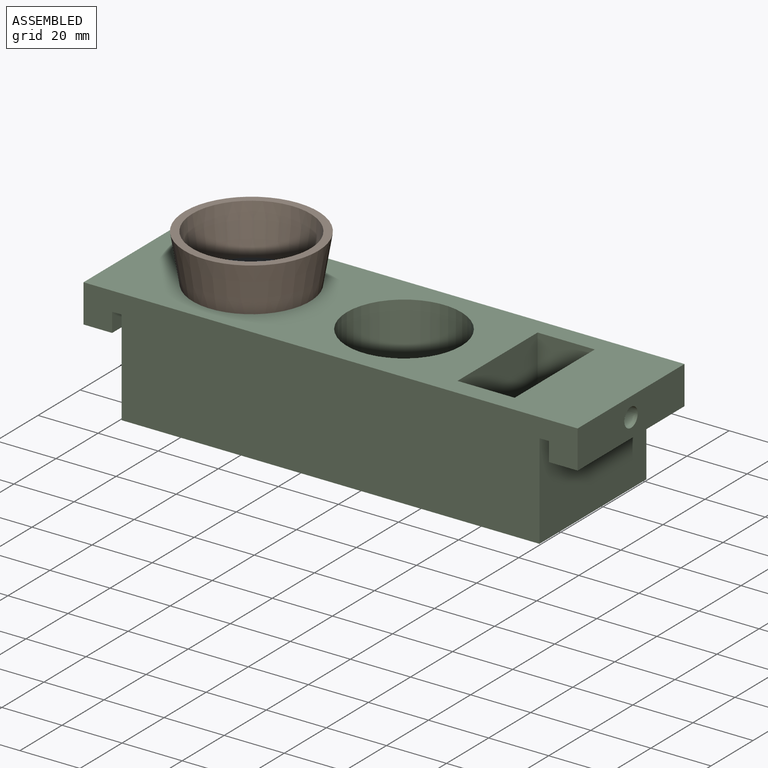
[diagram: assembled view]
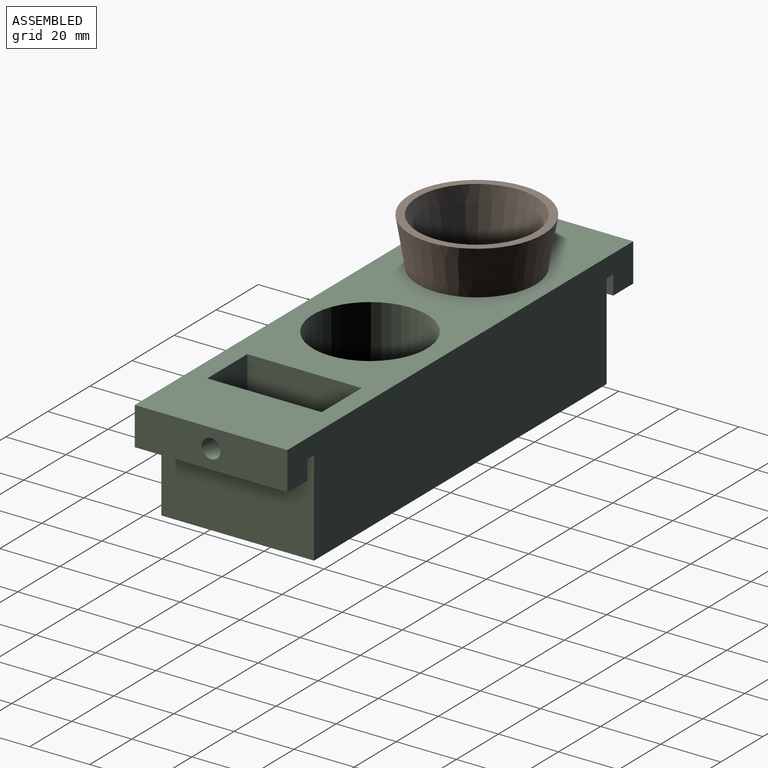
[diagram: assembled view, second angle]
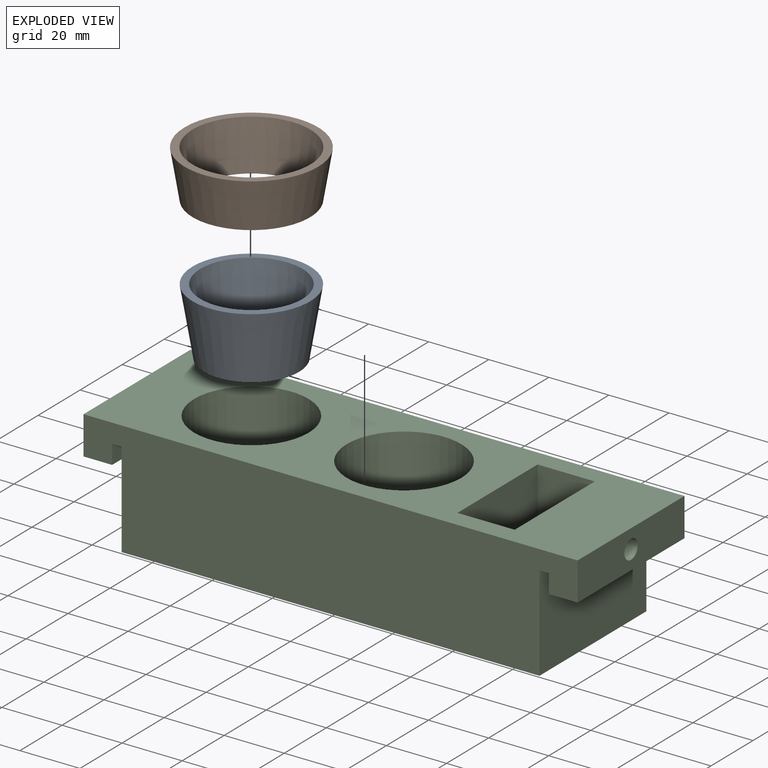
[diagram: exploded view]
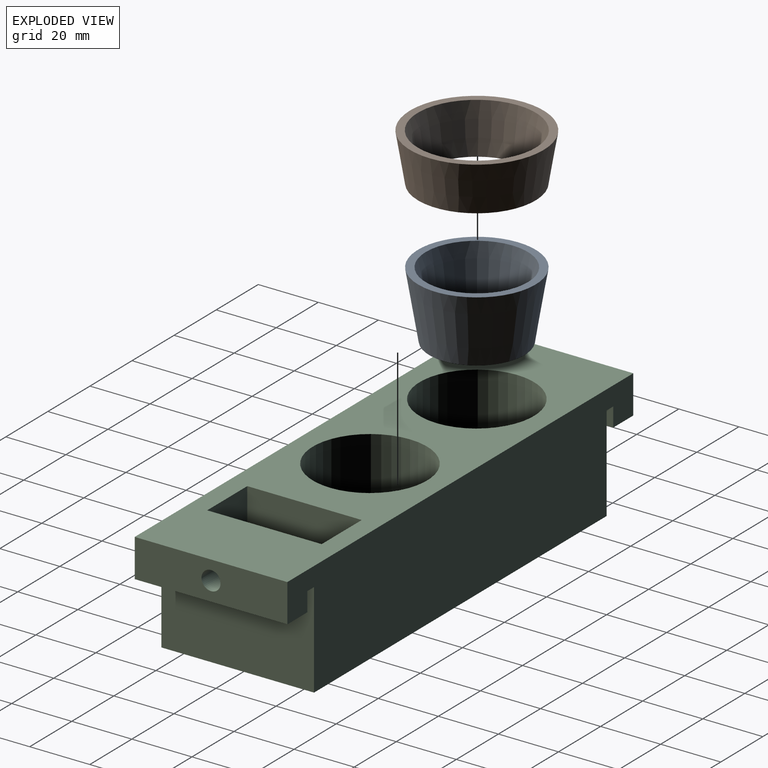
[diagram: exploded view, second angle]
ASSEMBLY  parts=3 mates=2
PART A: 5 faces, bbox 39.2x39.2x22.2 mm
  f0: plane 31.75x31.75mm, normal (0,0,1), area 791.7mm2, adj f1
  f1: cone r=22.23mm half-angle=9.5deg, axis (0,0,-1), area 2509.6mm2, adj f0,f2
  f2: plane 39.16x39.16mm, normal (0,0,-1), area 295.9mm2, adj f1,f4
  f3: plane 27.45x27.45mm, normal (0,0,-1), area 591.7mm2, adj f4
  f4: cone r=19.72mm half-angle=9.5deg, axis (0,0,-1), area 1926.5mm2, adj f2,f3
PART B: 4 faces, bbox 44.5x44.5x15.9 mm
  f0: plane 39.16x39.16mm, normal (0,0,1), area 295.9mm2, adj f1,f3
  f1: cone r=22.23mm half-angle=9.5deg, axis (0,0,-1), area 2113.6mm2, adj f0,f2
  f2: plane 44.45x44.45mm, normal (0,0,-1), area 338.8mm2, adj f1,f3
  f3: cone r=19.72mm half-angle=9.5deg, axis (0,0,-1), area 1853.3mm2, adj f0,f2
PART C: 26 faces, bbox 164.5x50.8x38.1 mm
  f0: plane 22.23x3.18mm, normal (0,0,-1), area 70.6mm2, adj f2,f4,f21,f25
  f1: plane 22.22x3.18mm, normal (0,0,-1), area 70.6mm2, adj f3,f4,f18,f24
  f2: plane 50.8x34.93mm, normal (1,0,0), area 1628.7mm2, adj f0,f4,f5,f13,f20,f25
  f3: plane 50.8x34.93mm, normal (-1,0,0), area 1628.8mm2, adj f1,f4,f5,f13,f19,f24
  f4: plane 164.47x38.1mm, normal (0,1,0), area 5580.6mm2, adj f0,f1,f2,f3,f12,f13,f16,f17
  f5: plane 164.47x38.1mm, normal (0,-1,0), area 5580.6mm2, adj f2,f3,f12,f13,f16,f17,f18,f19
  f6: plane 38.1x38.1mm, normal (1,0,0), area 1451.6mm2, adj f7,f9,f12,f13
  f7: plane 38.1x19.05mm, normal (0,-1,0), area 725.8mm2, adj f6,f8,f12,f13
  f8: plane 38.1x38.1mm, normal (-1,0,0), area 1451.6mm2, adj f7,f9,f12,f13
  f9: plane 38.1x19.05mm, normal (0,1,0), area 725.8mm2, adj f6,f8,f12,f13
  f10: cylinder r=19.05mm len=38.1mm, axis (0,0,-1), area 3800.3mm2, adj f12,f14
  f11: cylinder r=19.05mm len=38.1mm, axis (0,0,-1), area 3800.3mm2, adj f12,f15
  f12: plane 164.47x50.8mm, normal (0,0,1), area 5348.8mm2, adj f4,f5,f6,f7,f8,f9,f10,f11
  f13: plane 139.07x50.8mm, normal (0,0,-1), area 6338.7mm2, adj f2,f3,f4,f5,f6,f7,f8,f9
  f14: plane 38.1x38.1mm, normal (0,0,1), area 1140.1mm2, adj f10
  f15: plane 38.1x38.1mm, normal (0,0,1), area 1140.1mm2, adj f11
  f16: plane 50.8x12.7mm, normal (-1,0,0), area 613.4mm2, adj f4,f5,f12,f17,f24
  f17: plane 50.8x9.53mm, normal (0,0,-1), area 483.9mm2, adj f4,f5,f16,f18
  f18: plane 50.8x6.35mm, normal (1,0,0), area 306.7mm2, adj f1,f4,f5,f17,f19,f24
  f19: plane 22.22x3.18mm, normal (0,0,-1), area 70.6mm2, adj f3,f5,f18,f24
  f20: plane 22.23x3.18mm, normal (0,0,-1), area 70.6mm2, adj f2,f5,f21,f25
  f21: plane 50.8x6.35mm, normal (-1,0,0), area 306.7mm2, adj f0,f4,f5,f20,f22,f25
  f22: plane 50.8x9.53mm, normal (0,0,-1), area 483.9mm2, adj f4,f5,f21,f23
  f23: plane 50.8x12.7mm, normal (1,0,0), area 613.5mm2, adj f4,f5,f12,f22,f25
  f24: cylinder r=3.18mm len=12.7mm, axis (-1,0,0), area 221.9mm2, adj f1,f3,f16,f18,f19
  f25: cylinder r=3.17mm len=12.7mm, axis (1,0,0), area 221.7mm2, adj f0,f2,f20,f21,f23
PLACE A rot(axis=(0,1,0),180deg) t=(-93.76,0.05,82.46)mm
PLACE B rot(axis=(0,1,0),180deg) t=(-93.76,0.05,82.46)mm
PLACE C t=(-198.43,-28.15,28.48)mm fixed
MATE slider A.f1 <-> C.f10  axis (0,0,1) through (-61.96,41.44,66.58)mm
MATE fastened B.f1 <-> A.f1  axis (0,0,1) through (-61.96,41.44,66.58)mm
